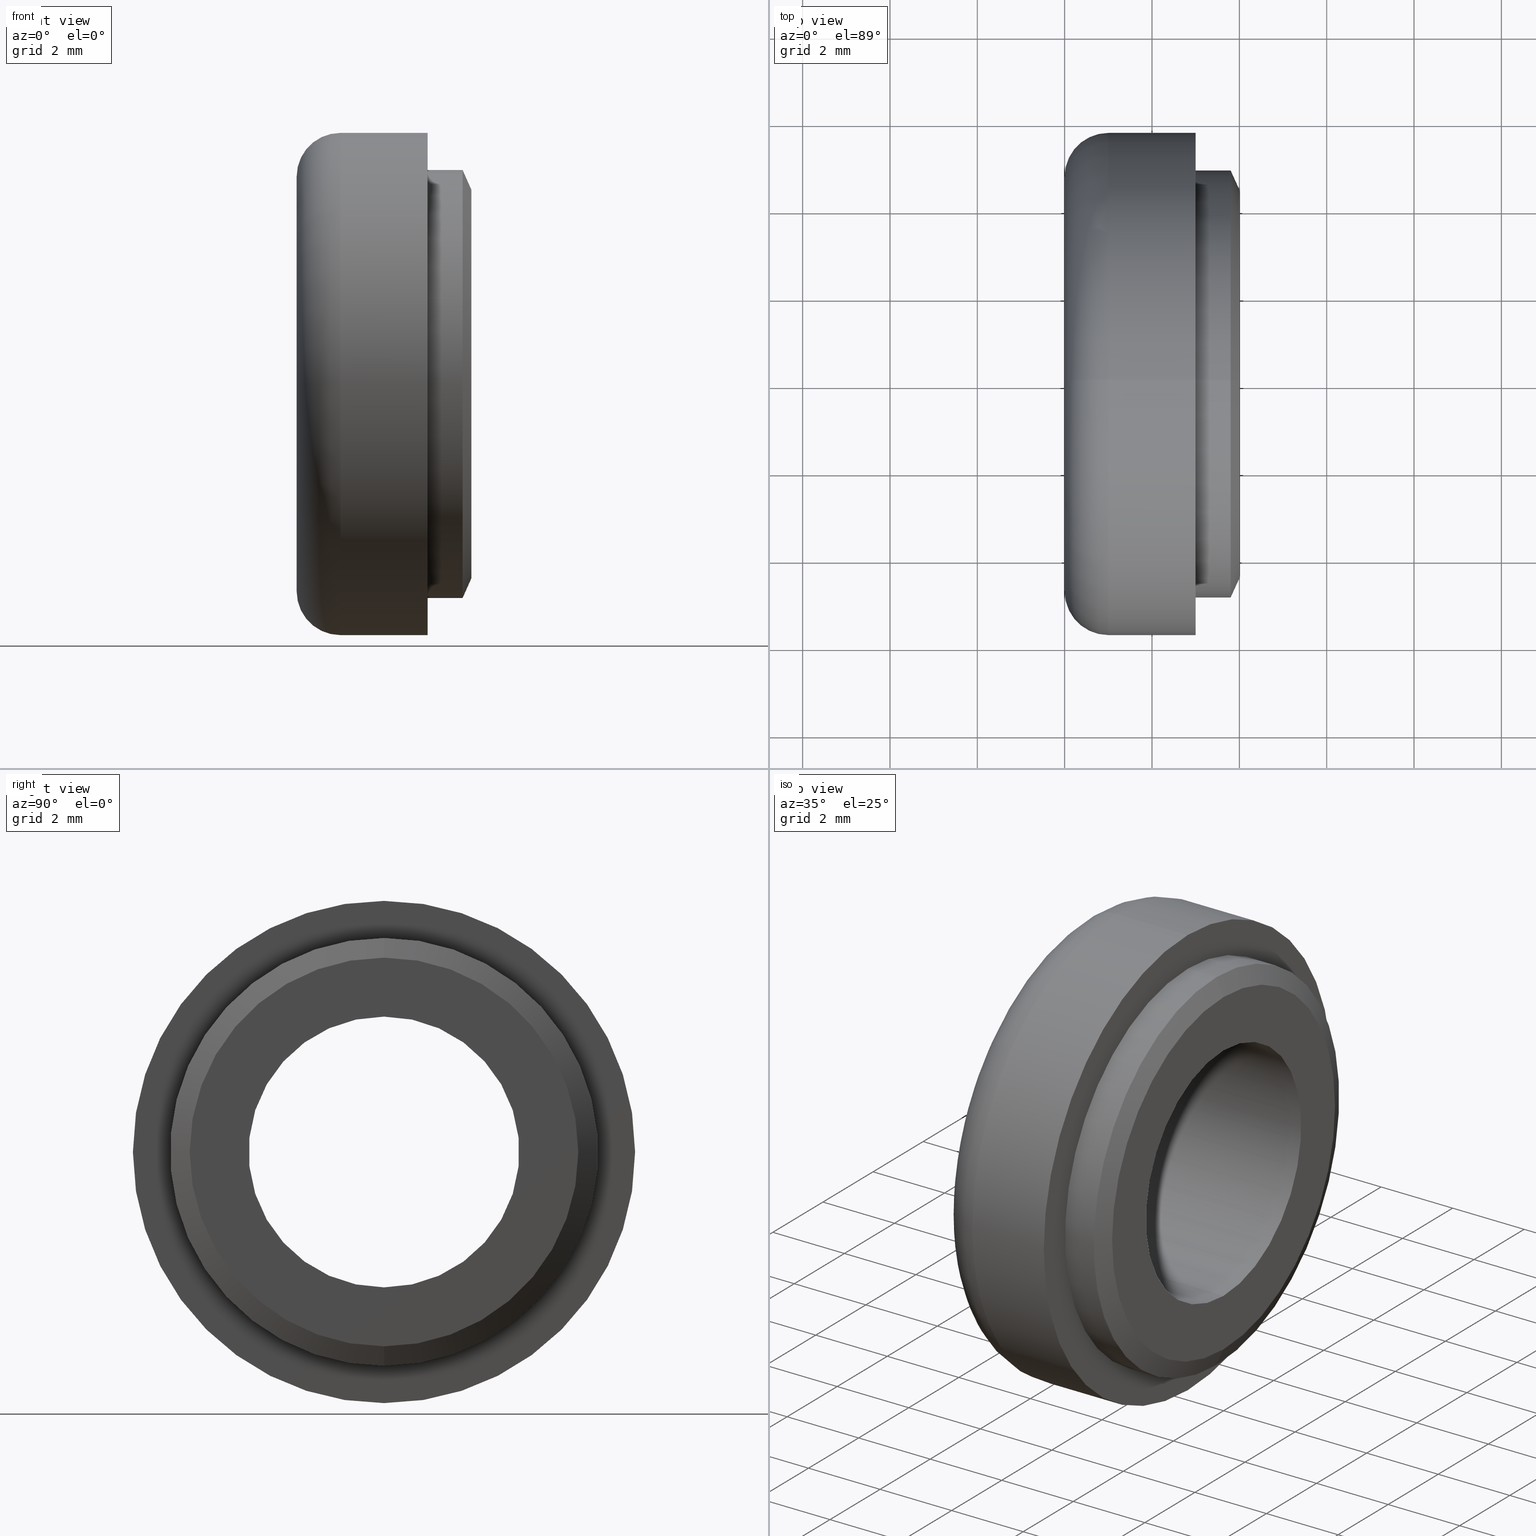
[diagram: canonical four-view strip — front | top / right | iso, engineering-drawing reading convention]
A machine part, canonical four-view strip (front | top / right | iso — engineering-drawing reading convention). The complete STEP part file that produces these views, byte-faithful:
ISO-10303-21;
HEADER;
FILE_DESCRIPTION (( 'STEP AP214' ),
    '1' );
FILE_NAME ('TL_421_M6.STEP',
    '2016-01-25T00:49:31',
    ( '' ),
    ( '' ),
    'SwSTEP 2.0',
    'SolidWorks 2015',
    '' );
FILE_SCHEMA (( 'AUTOMOTIVE_DESIGN' ));
ENDSEC;

DATA;
#1 = DIRECTION ( 'NONE',  ( 0.0000000000000000000, 0.0000000000000000000, -1.000000000000000000 ) ) ;
#2 = VERTEX_POINT ( 'NONE', #193 ) ;
#3 =( REPRESENTATION_RELATIONSHIP ('NONE','NONE', #61, #243 ) REPRESENTATION_RELATIONSHIP_WITH_TRANSFORMATION ( #430 )SHAPE_REPRESENTATION_RELATIONSHIP( ) );
#4 =( LENGTH_UNIT ( ) NAMED_UNIT ( * ) SI_UNIT ( .MILLI., .METRE. ) );
#5 = ORIENTED_EDGE ( 'NONE', *, *, #72, .F. ) ;
#6 = CIRCLE ( 'NONE', #586, 3.100000000000000100 ) ;
#7 =( LENGTH_UNIT ( ) NAMED_UNIT ( * ) SI_UNIT ( .MILLI., .METRE. ) );
#8 = UNCERTAINTY_MEASURE_WITH_UNIT (LENGTH_MEASURE( 1.000000000000000100E-005 ), #328, 'distance_accuracy_value', 'NONE');
#9 = DIRECTION ( 'NONE',  ( -1.000000000000000000, -0.0000000000000000000, -0.0000000000000000000 ) ) ;
#10 = PRODUCT_DEFINITION_SHAPE ( 'NONE', 'NONE',  #734 ) ;
#11 = DIRECTION ( 'NONE',  ( 1.000000000000000000, 0.0000000000000000000, 0.0000000000000000000 ) ) ;
#12 = CARTESIAN_POINT ( 'NONE',  ( 2.000000000000001800, 0.0000000000000000000, 4.749999999999999100 ) ) ;
#13 =( LENGTH_UNIT ( ) NAMED_UNIT ( * ) SI_UNIT ( .MILLI., .METRE. ) );
#14 = ADVANCED_FACE ( 'NONE', ( #259, #101 ), #74, .F. ) ;
#15 = DIRECTION ( 'NONE',  ( 0.0000000000000000000, 0.0000000000000000000, 1.000000000000000000 ) ) ;
#16 = CIRCLE ( 'NONE', #269, 5.749999999999999100 ) ;
#17 = ORIENTED_EDGE ( 'NONE', *, *, #722, .T. ) ;
#18 = CIRCLE ( 'NONE', #497, 3.100000000000000100 ) ;
#19 = VERTEX_POINT ( 'NONE', #694 ) ;
#20 = DIRECTION ( 'NONE',  ( 0.0000000000000000000, 0.0000000000000000000, -1.000000000000000000 ) ) ;
#21 = MECHANICAL_DESIGN_GEOMETRIC_PRESENTATION_REPRESENTATION (  '', ( #416 ), #45 ) ;
#22 = VERTEX_POINT ( 'NONE', #92 ) ;
#23 = CIRCLE ( 'NONE', #475, 4.750000000000000000 ) ;
#24 = DIRECTION ( 'NONE',  ( 0.0000000000000000000, 0.0000000000000000000, -1.000000000000000000 ) ) ;
#25 = PRODUCT_DEFINITION_FORMATION_WITH_SPECIFIED_SOURCE ( 'ANY', '', #69, .NOT_KNOWN. ) ;
#26 = DIRECTION ( 'NONE',  ( 0.0000000000000000000, 0.0000000000000000000, -1.000000000000000000 ) ) ;
#27 = SURFACE_STYLE_FILL_AREA ( #505 ) ;
#28 = EDGE_CURVE ( 'NONE', #144, #571, #688, .T. ) ;
#29 = SURFACE_STYLE_FILL_AREA ( #623 ) ;
#30 = DIRECTION ( 'NONE',  ( 0.0000000000000000000, 1.224646799147353500E-016, 1.000000000000000000 ) ) ;
#31 = AXIS2_PLACEMENT_3D ( 'NONE', #702, #365, #26 ) ;
#32 = EDGE_CURVE ( 'NONE', #85, #19, #387, .T. ) ;
#33 = AXIS2_PLACEMENT_3D ( 'NONE', #96, #610, #276 ) ;
#34 = CARTESIAN_POINT ( 'NONE',  ( 0.0000000000000000000, 0.0000000000000000000, 0.0000000000000000000 ) ) ;
#35 = CARTESIAN_POINT ( 'NONE',  ( 0.0000000000000000000, 0.0000000000000000000, 0.0000000000000000000 ) ) ;
#36 = EDGE_CURVE ( 'NONE', #612, #85, #540, .T. ) ;
#37 = ORIENTED_EDGE ( 'NONE', *, *, #189, .F. ) ;
#38 = PRODUCT_DEFINITION_CONTEXT ( 'detailed design', #568, 'design' ) ;
#39 = CARTESIAN_POINT ( 'NONE',  ( -88.98999999999999500, 0.0000000000000000000, 3.100000000000000500 ) ) ;
#40 = DIRECTION ( 'NONE',  ( -0.0000000000000000000, 0.0000000000000000000, 1.000000000000000000 ) ) ;
#41 = CIRCLE ( 'NONE', #42, 4.450000000000000200 ) ;
#42 = AXIS2_PLACEMENT_3D ( 'NONE', #439, #95, #495 ) ;
#43 = DIRECTION ( 'NONE',  ( 0.0000000000000000000, 0.0000000000000000000, 1.000000000000000000 ) ) ;
#44 =( NAMED_UNIT ( * ) PLANE_ANGLE_UNIT ( ) SI_UNIT ( $, .RADIAN. ) );
#45 =( GEOMETRIC_REPRESENTATION_CONTEXT ( 3 ) GLOBAL_UNCERTAINTY_ASSIGNED_CONTEXT ( ( #214 ) ) GLOBAL_UNIT_ASSIGNED_CONTEXT ( ( #4, #397, #50 ) ) REPRESENTATION_CONTEXT ( 'NONE', 'WORKASPACE' ) );
#46 = PRODUCT_CONTEXT ( 'NONE', #732, 'mechanical' ) ;
#47 =( LENGTH_UNIT ( ) NAMED_UNIT ( * ) SI_UNIT ( .MILLI., .METRE. ) );
#48 =( REPRESENTATION_RELATIONSHIP ('NONE','NONE', #61, #555 ) REPRESENTATION_RELATIONSHIP_WITH_TRANSFORMATION ( #567 )SHAPE_REPRESENTATION_RELATIONSHIP( ) );
#49 = ORIENTED_EDGE ( 'NONE', *, *, #223, .F. ) ;
#50 =( NAMED_UNIT ( * ) SI_UNIT ( $, .STERADIAN. ) SOLID_ANGLE_UNIT ( ) );
#51 = CARTESIAN_POINT ( 'NONE',  ( 3.000000000000002700, 5.449678256205721800E-016, -4.450000000000000200 ) ) ;
#52 =( NAMED_UNIT ( * ) SI_UNIT ( $, .STERADIAN. ) SOLID_ANGLE_UNIT ( ) );
#53 = DIRECTION ( 'NONE',  ( -1.000000000000000000, -0.0000000000000000000, -0.0000000000000000000 ) ) ;
#54 = CARTESIAN_POINT ( 'NONE',  ( -88.98999999999999500, 6.000769315822031700E-016, -4.900000000000000400 ) ) ;
#55 = CYLINDRICAL_SURFACE ( 'NONE', #522, 3.100000000000000100 ) ;
#56 = EDGE_LOOP ( 'NONE', ( #647, #478, #308, #517 ) ) ;
#57 = CARTESIAN_POINT ( 'NONE',  ( 0.0000000000000000000, 0.0000000000000000000, -4.749999999999999100 ) ) ;
#58 = ADVANCED_FACE ( 'NONE', ( #83 ), #587, .T. ) ;
#59 = PRODUCT_RELATED_PRODUCT_CATEGORY ( 'part', '', ( #69 ) ) ;
#60 = ORIENTED_EDGE ( 'NONE', *, *, #260, .T. ) ;
#61 = SHAPE_REPRESENTATION ( 'TL_421_M6', ( #509, #359, #395 ), #435 ) ;
#62 = EDGE_CURVE ( 'NONE', #144, #437, #367, .T. ) ;
#63 = SURFACE_STYLE_USAGE ( .BOTH. , #174 ) ;
#64 = EDGE_CURVE ( 'NONE', #178, #389, #290, .T. ) ;
#65 = CARTESIAN_POINT ( 'NONE',  ( 3.000000000000000000, 0.0000000000000000000, 0.0000000000000000000 ) ) ;
#66 = EDGE_LOOP ( 'NONE', ( #699, #556, #541, #580 ) ) ;
#67 = ORIENTED_EDGE ( 'NONE', *, *, #161, .T. ) ;
#68 = CARTESIAN_POINT ( 'NONE',  ( 0.0000000000000000000, 6.429395695523603200E-016, 4.749999999999999100 ) ) ;
#69 = PRODUCT ( 'TL_421_M6', 'TL_421_M6', '', ( #46 ) ) ;
#70 = ORIENTED_EDGE ( 'NONE', *, *, #270, .F. ) ;
#71 = AXIS2_PLACEMENT_3D ( 'NONE', #419, #79, #149 ) ;
#72 = EDGE_CURVE ( 'NONE', #437, #22, #565, .T. ) ;
#73 = AXIS2_PLACEMENT_3D ( 'NONE', #216, #615, #280 ) ;
#74 = PLANE ( 'NONE',  #370 ) ;
#75 = EDGE_CURVE ( 'NONE', #82, #178, #429, .T. ) ;
#76 = EDGE_LOOP ( 'NONE', ( #94, #67, #5, #70 ) ) ;
#77 = FACE_OUTER_BOUND ( 'NONE', #207, .T. ) ;
#78 = ORIENTED_EDGE ( 'NONE', *, *, #198, .T. ) ;
#79 = DIRECTION ( 'NONE',  ( -1.000000000000000000, -0.0000000000000000000, -0.0000000000000000000 ) ) ;
#80 = UNCERTAINTY_MEASURE_WITH_UNIT (LENGTH_MEASURE( 1.000000000000000100E-005 ), #510, 'distance_accuracy_value', 'NONE');
#81 = DIRECTION ( 'NONE',  ( 0.0000000000000000000, 0.0000000000000000000, 1.000000000000000000 ) ) ;
#82 = VERTEX_POINT ( 'NONE', #404 ) ;
#83 = FACE_OUTER_BOUND ( 'NONE', #103, .T. ) ;
#84 = AXIS2_PLACEMENT_3D ( 'NONE', #489, #209, #607 ) ;
#85 = VERTEX_POINT ( 'NONE', #12 ) ;
#86 = VERTEX_POINT ( 'NONE', #57 ) ;
#87 = DIRECTION ( 'NONE',  ( -1.000000000000000000, -0.0000000000000000000, -0.0000000000000000000 ) ) ;
#88 =( GEOMETRIC_REPRESENTATION_CONTEXT ( 3 ) GLOBAL_UNCERTAINTY_ASSIGNED_CONTEXT ( ( #80 ) ) GLOBAL_UNIT_ASSIGNED_CONTEXT ( ( #510, #180, #572 ) ) REPRESENTATION_CONTEXT ( 'NONE', 'WORKASPACE' ) );
#89 = DIRECTION ( 'NONE',  ( 0.0000000000000000000, 0.0000000000000000000, 1.000000000000000000 ) ) ;
#90 = CIRCLE ( 'NONE', #465, 4.900000000000000400 ) ;
#91 = DIRECTION ( 'NONE',  ( 0.0000000000000000000, 0.0000000000000000000, -1.000000000000000000 ) ) ;
#92 = CARTESIAN_POINT ( 'NONE',  ( 1.000000000000000000, 0.0000000000000000000, 5.749999999999999100 ) ) ;
#93 = CARTESIAN_POINT ( 'NONE',  ( 3.000000000000000000, 0.0000000000000000000, 5.749999999999999100 ) ) ;
#94 = ORIENTED_EDGE ( 'NONE', *, *, #468, .F. ) ;
#95 = DIRECTION ( 'NONE',  ( -1.000000000000000000, -0.0000000000000000000, -0.0000000000000000000 ) ) ;
#96 = CARTESIAN_POINT ( 'NONE',  ( 0.0000000000000000000, 0.0000000000000000000, 0.0000000000000000000 ) ) ;
#97 = CARTESIAN_POINT ( 'NONE',  ( 0.0000000000000000000, 0.0000000000000000000, 3.100000000000000100 ) ) ;
#98 = PRODUCT_DEFINITION_FORMATION_WITH_SPECIFIED_SOURCE ( 'ANY', '', #354, .NOT_KNOWN. ) ;
#99 = ORIENTED_EDGE ( 'NONE', *, *, #235, .F. ) ;
#100 = DIRECTION ( 'NONE',  ( -1.000000000000000000, -0.0000000000000000000, -0.0000000000000000000 ) ) ;
#101 = FACE_OUTER_BOUND ( 'NONE', #301, .T. ) ;
#102 = EDGE_CURVE ( 'NONE', #612, #293, #115, .T. ) ;
#103 = EDGE_LOOP ( 'NONE', ( #379, #525, #604, #698 ) ) ;
#104 = EDGE_CURVE ( 'NONE', #726, #197, #695, .T. ) ;
#105 =( NAMED_UNIT ( * ) SI_UNIT ( $, .STERADIAN. ) SOLID_ANGLE_UNIT ( ) );
#106 = ORIENTED_EDGE ( 'NONE', *, *, #313, .T. ) ;
#107 = CARTESIAN_POINT ( 'NONE',  ( 3.000000000000002700, 0.0000000000000000000, 0.0000000000000000000 ) ) ;
#108 = FILL_AREA_STYLE_COLOUR ( '', #319 ) ;
#109 = CIRCLE ( 'NONE', #195, 3.100000000000000100 ) ;
#110 = FILL_AREA_STYLE_COLOUR ( '', #665 ) ;
#111 = CIRCLE ( 'NONE', #391, 3.100000000000000100 ) ;
#112 = MECHANICAL_DESIGN_GEOMETRIC_PRESENTATION_REPRESENTATION (  '', ( #171 ), #625 ) ;
#113 = EDGE_CURVE ( 'NONE', #450, #320, #708, .T. ) ;
#114 = AXIS2_PLACEMENT_3D ( 'NONE', #657, #211, #40 ) ;
#115 = LINE ( 'NONE', #467, #412 ) ;
#116 = CONTEXT_DEPENDENT_SHAPE_REPRESENTATION ( #48, #10 ) ;
#117 = APPLICATION_PROTOCOL_DEFINITION ( 'draft international standard', 'automotive_design', 1998, #457 ) ;
#118 = EDGE_CURVE ( 'NONE', #592, #417, #394, .T. ) ;
#119 =( NAMED_UNIT ( * ) SI_UNIT ( $, .STERADIAN. ) SOLID_ANGLE_UNIT ( ) );
#120 = CARTESIAN_POINT ( 'NONE',  ( 0.0000000000000000000, 0.0000000000000000000, 0.0000000000000000000 ) ) ;
#121 = CARTESIAN_POINT ( 'NONE',  ( 0.0000000000000000000, 0.0000000000000000000, 0.0000000000000000000 ) ) ;
#122 = CARTESIAN_POINT ( 'NONE',  ( 0.0000000000000000000, 5.817072295949927400E-016, -4.750000000000000000 ) ) ;
#123 = EDGE_LOOP ( 'NONE', ( #316, #590 ) ) ;
#124 = ORIENTED_EDGE ( 'NONE', *, *, #32, .T. ) ;
#125 = ADVANCED_FACE ( 'NONE', ( #254 ), #377, .T. ) ;
#126 = ORIENTED_EDGE ( 'NONE', *, *, #646, .F. ) ;
#127 = ADVANCED_FACE ( 'NONE', ( #546 ), #524, .T. ) ;
#128 = EDGE_LOOP ( 'NONE', ( #60, #677 ) ) ;
#129 = DIRECTION ( 'NONE',  ( 1.000000000000000000, 0.0000000000000000000, 0.0000000000000000000 ) ) ;
#130 = DIRECTION ( 'NONE',  ( -1.000000000000000000, -0.0000000000000000000, -0.0000000000000000000 ) ) ;
#131 = AXIS2_PLACEMENT_3D ( 'NONE', #603, #550, #43 ) ;
#132 = LINE ( 'NONE', #39, #188 ) ;
#133 = CARTESIAN_POINT ( 'NONE',  ( 3.000000000000000000, 0.0000000000000000000, 0.0000000000000000000 ) ) ;
#134 = DIRECTION ( 'NONE',  ( 0.0000000000000000000, 0.0000000000000000000, -1.000000000000000000 ) ) ;
#135 = FACE_OUTER_BOUND ( 'NONE', #372, .T. ) ;
#136 = CONICAL_SURFACE ( 'NONE', #579, 4.450000000000000200, 1.152571997215657400 ) ;
#137 = VECTOR ( 'NONE', #141, 1000.000000000000000 ) ;
#138 = PRODUCT ( 'washer', 'washer', '', ( #294 ) ) ;
#139 = AXIS2_PLACEMENT_3D ( 'NONE', #566, #608, #441 ) ;
#140 = STYLED_ITEM ( 'NONE', ( #233 ), #684 ) ;
#141 = DIRECTION ( 'NONE',  ( -1.000000000000000000, -0.0000000000000000000, -0.0000000000000000000 ) ) ;
#142 = ADVANCED_FACE ( 'NONE', ( #531 ), #187, .F. ) ;
#143 = ORIENTED_EDGE ( 'NONE', *, *, #532, .F. ) ;
#144 = VERTEX_POINT ( 'NONE', #454 ) ;
#145 = PRODUCT_DEFINITION_SHAPE ( 'NONE', 'NONE',  #733 ) ;
#146 = FACE_OUTER_BOUND ( 'NONE', #304, .T. ) ;
#147 = MANIFOLD_SOLID_BREP ( '��]1', #661 ) ;
#148 = ORIENTED_EDGE ( 'NONE', *, *, #223, .T. ) ;
#149 = DIRECTION ( 'NONE',  ( 0.0000000000000000000, 0.0000000000000000000, 1.000000000000000000 ) ) ;
#150 = PRODUCT_RELATED_PRODUCT_CATEGORY ( 'part', '', ( #354 ) ) ;
#151 = EDGE_CURVE ( 'NONE', #571, #22, #333, .T. ) ;
#152 = EDGE_LOOP ( 'NONE', ( #716, #143 ) ) ;
#153 = EDGE_CURVE ( 'NONE', #552, #178, #90, .T. ) ;
#154 = VECTOR ( 'NONE', #230, 1000.000000000000000 ) ;
#155 = CIRCLE ( 'NONE', #645, 4.450000000000000200 ) ;
#156 = ORIENTED_EDGE ( 'NONE', *, *, #28, .T. ) ;
#157 = SHAPE_DEFINITION_REPRESENTATION ( #239, #61 ) ;
#158 = CARTESIAN_POINT ( 'NONE',  ( -88.98999999999999500, 3.796405077356795400E-016, -3.100000000000000500 ) ) ;
#159 = DIRECTION ( 'NONE',  ( 0.0000000000000000000, 0.0000000000000000000, 1.000000000000000000 ) ) ;
#160 = EDGE_CURVE ( 'NONE', #281, #559, #18, .T. ) ;
#161 = EDGE_CURVE ( 'NONE', #271, #22, #449, .T. ) ;
#162 = DIRECTION ( 'NONE',  ( 1.000000000000000000, 0.0000000000000000000, 0.0000000000000000000 ) ) ;
#163 = DIRECTION ( 'NONE',  ( 1.000000000000000000, 0.0000000000000000000, 0.0000000000000000000 ) ) ;
#164 = LINE ( 'NONE', #54, #606 ) ;
#165 = ORIENTED_EDGE ( 'NONE', *, *, #161, .F. ) ;
#166 = DIRECTION ( 'NONE',  ( -1.000000000000000000, -0.0000000000000000000, -0.0000000000000000000 ) ) ;
#167 = CARTESIAN_POINT ( 'NONE',  ( 1.000000000000000000, 0.0000000000000000000, 0.0000000000000000000 ) ) ;
#168 = ORIENTED_EDGE ( 'NONE', *, *, #490, .F. ) ;
#169 = VECTOR ( 'NONE', #227, 1000.000000000000000 ) ;
#170 = ORIENTED_EDGE ( 'NONE', *, *, #160, .F. ) ;
#171 = STYLED_ITEM ( 'NONE', ( #619 ), #601 ) ;
#172 = ORIENTED_EDGE ( 'NONE', *, *, #36, .F. ) ;
#173 = DIRECTION ( 'NONE',  ( 0.0000000000000000000, 0.0000000000000000000, 1.000000000000000000 ) ) ;
#174 = SURFACE_SIDE_STYLE ('',( #27 ) ) ;
#175 = PRESENTATION_LAYER_ASSIGNMENT (  '', '', ( #140 ) ) ;
#176 = PRODUCT_CONTEXT ( 'NONE', #291, 'mechanical' ) ;
#177 = CARTESIAN_POINT ( 'NONE',  ( 0.0000000000000000000, 0.0000000000000000000, 0.0000000000000000000 ) ) ;
#178 = VERTEX_POINT ( 'NONE', #488 ) ;
#179 = CIRCLE ( 'NONE', #503, 1.000000000000000000 ) ;
#180 =( NAMED_UNIT ( * ) PLANE_ANGLE_UNIT ( ) SI_UNIT ( $, .RADIAN. ) );
#181 = DIRECTION ( 'NONE',  ( 0.0000000000000000000, 0.0000000000000000000, 1.000000000000000000 ) ) ;
#182 = DIRECTION ( 'NONE',  ( 1.000000000000000000, 0.0000000000000000000, 0.0000000000000000000 ) ) ;
#183 = ADVANCED_FACE ( 'NONE', ( #599 ), #136, .T. ) ;
#184 = DIRECTION ( 'NONE',  ( 0.0000000000000000000, -1.000000000000000000, 0.0000000000000000000 ) ) ;
#185 = DIRECTION ( 'NONE',  ( -1.000000000000000000, -0.0000000000000000000, -0.0000000000000000000 ) ) ;
#186 = PRODUCT_DEFINITION_FORMATION_WITH_SPECIFIED_SOURCE ( 'ANY', '', #138, .NOT_KNOWN. ) ;
#187 = CYLINDRICAL_SURFACE ( 'NONE', #347, 3.100000000000000100 ) ;
#188 = VECTOR ( 'NONE', #273, 1000.000000000000000 ) ;
#189 = EDGE_CURVE ( 'NONE', #85, #612, #287, .T. ) ;
#190 = EDGE_CURVE ( 'NONE', #82, #2, #155, .T. ) ;
#191 = DIRECTION ( 'NONE',  ( -1.000000000000000000, -0.0000000000000000000, -0.0000000000000000000 ) ) ;
#192 = CARTESIAN_POINT ( 'NONE',  ( 2.000000000000001800, 0.0000000000000000000, 0.0000000000000000000 ) ) ;
#193 = CARTESIAN_POINT ( 'NONE',  ( 3.000000000000002700, 5.725223786013876300E-016, -4.450000000000000200 ) ) ;
#194 = EDGE_CURVE ( 'NONE', #178, #552, #725, .T. ) ;
#195 = AXIS2_PLACEMENT_3D ( 'NONE', #167, #558, #220 ) ;
#196 = ADVANCED_FACE ( 'NONE', ( #427 ), #307, .T. ) ;
#197 = VERTEX_POINT ( 'NONE', #544 ) ;
#198 = EDGE_CURVE ( 'NONE', #592, #559, #706, .T. ) ;
#199 = SHAPE_REPRESENTATION_RELATIONSHIP ( 'NONE' , 'NONE' ,  #555, #684 ) ;
#200 = PRESENTATION_LAYER_ASSIGNMENT (  '', '', ( #242 ) ) ;
#201 = CIRCLE ( 'NONE', #662, 4.749999999999999100 ) ;
#202 = CARTESIAN_POINT ( 'NONE',  ( 2.000000000000001800, 0.0000000000000000000, 0.0000000000000000000 ) ) ;
#203 = PRESENTATION_LAYER_ASSIGNMENT (  '', '', ( #171 ) ) ;
#204 = CARTESIAN_POINT ( 'NONE',  ( 0.0000000000000000000, 3.796405077356794900E-016, -3.100000000000000100 ) ) ;
#205 = MECHANICAL_DESIGN_GEOMETRIC_PRESENTATION_REPRESENTATION (  '', ( #140 ), #255 ) ;
#206 = PLANE ( 'NONE',  #84 ) ;
#207 = EDGE_LOOP ( 'NONE', ( #667, #538, #618, #366 ) ) ;
#208 = CARTESIAN_POINT ( 'NONE',  ( -88.98999999999999500, 0.0000000000000000000, 4.749999999999999100 ) ) ;
#209 = DIRECTION ( 'NONE',  ( 1.000000000000000000, 0.0000000000000000000, 0.0000000000000000000 ) ) ;
#210 = CARTESIAN_POINT ( 'NONE',  ( 2.799999999999997200, 6.000769315822031700E-016, -4.900000000000000400 ) ) ;
#211 = DIRECTION ( 'NONE',  ( -1.000000000000000000, 0.0000000000000000000, -0.0000000000000000000 ) ) ;
#212 = FACE_OUTER_BOUND ( 'NONE', #689, .T. ) ;
#213 = EDGE_LOOP ( 'NONE', ( #600, #418 ) ) ;
#214 = UNCERTAINTY_MEASURE_WITH_UNIT (LENGTH_MEASURE( 1.000000000000000100E-005 ), #4, 'distance_accuracy_value', 'NONE');
#215 = CARTESIAN_POINT ( 'NONE',  ( 1.000000000000000000, 0.0000000000000000000, 0.0000000000000000000 ) ) ;
#216 = CARTESIAN_POINT ( 'NONE',  ( 1.000000000000000000, 0.0000000000000000000, 0.0000000000000000000 ) ) ;
#217 = ORIENTED_EDGE ( 'NONE', *, *, #194, .T. ) ;
#218 = ORIENTED_EDGE ( 'NONE', *, *, #231, .F. ) ;
#219 = PRODUCT_RELATED_PRODUCT_CATEGORY ( 'part', '', ( #138 ) ) ;
#220 = DIRECTION ( 'NONE',  ( 0.0000000000000000000, 0.0000000000000000000, -1.000000000000000000 ) ) ;
#221 = EDGE_CURVE ( 'NONE', #571, #144, #583, .T. ) ;
#222 = EDGE_LOOP ( 'NONE', ( #296, #520, #257, #49 ) ) ;
#223 = EDGE_CURVE ( 'NONE', #666, #389, #562, .T. ) ;
#224 = ORIENTED_EDGE ( 'NONE', *, *, #72, .T. ) ;
#225 = ORIENTED_EDGE ( 'NONE', *, *, #104, .T. ) ;
#226 = DIRECTION ( 'NONE',  ( 0.0000000000000000000, 0.0000000000000000000, -1.000000000000000000 ) ) ;
#227 = DIRECTION ( 'NONE',  ( -1.000000000000000000, -0.0000000000000000000, -0.0000000000000000000 ) ) ;
#228 = EDGE_LOOP ( 'NONE', ( #217, #422, #570, #363 ) ) ;
#229 = DIRECTION ( 'NONE',  ( 0.0000000000000000000, 0.0000000000000000000, 1.000000000000000000 ) ) ;
#230 = DIRECTION ( 'NONE',  ( -1.000000000000000000, 0.0000000000000000000, 0.0000000000000000000 ) ) ;
#231 = EDGE_CURVE ( 'NONE', #466, #658, #111, .T. ) ;
#232 = AXIS2_PLACEMENT_3D ( 'NONE', #498, #442, #660 ) ;
#233 = PRESENTATION_STYLE_ASSIGNMENT (( #344 ) ) ;
#234 = APPLICATION_PROTOCOL_DEFINITION ( 'draft international standard', 'automotive_design', 1998, #568 ) ;
#235 = EDGE_CURVE ( 'NONE', #197, #466, #692, .T. ) ;
#236 = DIRECTION ( 'NONE',  ( 1.000000000000000000, 0.0000000000000000000, 0.0000000000000000000 ) ) ;
#237 = CARTESIAN_POINT ( 'NONE',  ( 2.000000000000001800, 0.0000000000000000000, 0.0000000000000000000 ) ) ;
#238 = EDGE_LOOP ( 'NONE', ( #381, #528, #597, #277 ) ) ;
#239 = PRODUCT_DEFINITION_SHAPE ( 'NONE', 'NONE',  #718 ) ;
#240 = CIRCLE ( 'NONE', #693, 3.100000000000000500 ) ;
#241 = ORIENTED_EDGE ( 'NONE', *, *, #270, .T. ) ;
#242 = STYLED_ITEM ( 'NONE', ( #617 ), #147 ) ;
#243 = SHAPE_REPRESENTATION ( 'washer', ( #376 ), #340 ) ;
#244 = DIRECTION ( 'NONE',  ( 0.0000000000000000000, 0.0000000000000000000, 1.000000000000000000 ) ) ;
#245 = PLANE ( 'NONE',  #624 ) ;
#246 = ORIENTED_EDGE ( 'NONE', *, *, #75, .T. ) ;
#247 = VECTOR ( 'NONE', #492, 1000.000000000000000 ) ;
#248 = CARTESIAN_POINT ( 'NONE',  ( 3.000000000000000000, 0.0000000000000000000, 0.0000000000000000000 ) ) ;
#249 = ORIENTED_EDGE ( 'NONE', *, *, #153, .F. ) ;
#250 = ORIENTED_EDGE ( 'NONE', *, *, #113, .T. ) ;
#251 = DIRECTION ( 'NONE',  ( 0.0000000000000000000, 0.0000000000000000000, 1.000000000000000000 ) ) ;
#252 = DIRECTION ( 'NONE',  ( 0.0000000000000000000, 0.0000000000000000000, 1.000000000000000000 ) ) ;
#253 = CARTESIAN_POINT ( 'NONE',  ( 2.000000000000000000, 4.900000000000000400, 0.0000000000000000000 ) ) ;
#254 = FACE_OUTER_BOUND ( 'NONE', #669, .T. ) ;
#255 =( GEOMETRIC_REPRESENTATION_CONTEXT ( 3 ) GLOBAL_UNCERTAINTY_ASSIGNED_CONTEXT ( ( #553 ) ) GLOBAL_UNIT_ASSIGNED_CONTEXT ( ( #7, #398, #52 ) ) REPRESENTATION_CONTEXT ( 'NONE', 'WORKASPACE' ) );
#256 = DIRECTION ( 'NONE',  ( -0.4061384660534569400, 0.0000000000000000000, 0.9138115486202530400 ) ) ;
#257 = ORIENTED_EDGE ( 'NONE', *, *, #64, .T. ) ;
#258 = CLOSED_SHELL ( 'NONE', ( #415, #196, #463, #400, #360, #303, #635, #402, #696, #349, #142 ) ) ;
#259 = FACE_BOUND ( 'NONE', #278, .T. ) ;
#260 = EDGE_CURVE ( 'NONE', #19, #293, #411, .T. ) ;
#261 = ORIENTED_EDGE ( 'NONE', *, *, #267, .F. ) ;
#262 = EDGE_CURVE ( 'NONE', #2, #552, #479, .T. ) ;
#263 = LINE ( 'NONE', #664, #491 ) ;
#264 = VECTOR ( 'NONE', #166, 1000.000000000000000 ) ;
#265 = CARTESIAN_POINT ( 'NONE',  ( 2.799999999999997200, 0.0000000000000000000, 0.0000000000000000000 ) ) ;
#266 = VECTOR ( 'NONE', #256, 1000.000000000000000 ) ;
#267 = EDGE_CURVE ( 'NONE', #22, #437, #16, .T. ) ;
#268 = EDGE_CURVE ( 'NONE', #293, #19, #23, .T. ) ;
#269 = AXIS2_PLACEMENT_3D ( 'NONE', #673, #339, #1 ) ;
#270 = EDGE_CURVE ( 'NONE', #86, #437, #179, .T. ) ;
#271 = VERTEX_POINT ( 'NONE', #68 ) ;
#272 = DIRECTION ( 'NONE',  ( 1.000000000000000000, 0.0000000000000000000, 0.0000000000000000000 ) ) ;
#273 = DIRECTION ( 'NONE',  ( -1.000000000000000000, -0.0000000000000000000, -0.0000000000000000000 ) ) ;
#274 = CYLINDRICAL_SURFACE ( 'NONE', #71, 5.749999999999999100 ) ;
#275 = AXIS2_PLACEMENT_3D ( 'NONE', #640, #473, #251 ) ;
#276 = DIRECTION ( 'NONE',  ( 0.0000000000000000000, 0.0000000000000000000, -1.000000000000000000 ) ) ;
#277 = ORIENTED_EDGE ( 'NONE', *, *, #75, .F. ) ;
#278 = EDGE_LOOP ( 'NONE', ( #37, #172 ) ) ;
#279 = DIRECTION ( 'NONE',  ( -1.000000000000000000, -0.0000000000000000000, -0.0000000000000000000 ) ) ;
#280 = DIRECTION ( 'NONE',  ( 0.0000000000000000000, 0.0000000000000000000, -1.000000000000000000 ) ) ;
#281 = VERTEX_POINT ( 'NONE', #632 ) ;
#282 = DIRECTION ( 'NONE',  ( -1.000000000000000000, -0.0000000000000000000, -0.0000000000000000000 ) ) ;
#283 = DIRECTION ( 'NONE',  ( 0.0000000000000000000, 0.0000000000000000000, -1.000000000000000000 ) ) ;
#284 = VECTOR ( 'NONE', #494, 1000.000000000000000 ) ;
#285 = CARTESIAN_POINT ( 'NONE',  ( 1.000000000000000000, 0.0000000000000000000, 4.749999999999999100 ) ) ;
#286 = CYLINDRICAL_SURFACE ( 'NONE', #139, 3.100000000000000500 ) ;
#287 = CIRCLE ( 'NONE', #614, 4.749999999999999100 ) ;
#288 = CARTESIAN_POINT ( 'NONE',  ( 1.000000000000000000, 7.041719095097279900E-016, -5.749999999999999100 ) ) ;
#289 = CARTESIAN_POINT ( 'NONE',  ( 2.000000000000001800, 5.817072295949926400E-016, -4.749999999999999100 ) ) ;
#290 = LINE ( 'NONE', #679, #137 ) ;
#291 = APPLICATION_CONTEXT ( 'automotive_design' ) ;
#292 = ORIENTED_EDGE ( 'NONE', *, *, #102, .F. ) ;
#293 = VERTEX_POINT ( 'NONE', #122 ) ;
#294 = PRODUCT_CONTEXT ( 'NONE', #672, 'mechanical' ) ;
#295 = FILL_AREA_STYLE ('',( #629 ) ) ;
#296 = ORIENTED_EDGE ( 'NONE', *, *, #311, .F. ) ;
#297 = FILL_AREA_STYLE ('',( #630 ) ) ;
#298 = TOROIDAL_SURFACE ( 'NONE', #730, 4.749999999999999100, 1.000000000000000000 ) ;
#299 = DIRECTION ( 'NONE',  ( 0.0000000000000000000, 0.0000000000000000000, 1.000000000000000000 ) ) ;
#300 = SURFACE_STYLE_FILL_AREA ( #295 ) ;
#301 = EDGE_LOOP ( 'NONE', ( #712, #148 ) ) ;
#302 = CARTESIAN_POINT ( 'NONE',  ( 1.000000000000000000, 0.0000000000000000000, 0.0000000000000000000 ) ) ;
#303 = ADVANCED_FACE ( 'NONE', ( #314, #543 ), #245, .T. ) ;
#304 = EDGE_LOOP ( 'NONE', ( #700, #250, #17, #168 ) ) ;
#305 = DIRECTION ( 'NONE',  ( 0.0000000000000000000, 0.0000000000000000000, -1.000000000000000000 ) ) ;
#306 = LINE ( 'NONE', #506, #154 ) ;
#307 = TOROIDAL_SURFACE ( 'NONE', #322, 4.749999999999999100, 1.000000000000000000 ) ;
#308 = ORIENTED_EDGE ( 'NONE', *, *, #537, .T. ) ;
#309 = CARTESIAN_POINT ( 'NONE',  ( -88.98999999999999500, 0.0000000000000000000, 0.0000000000000000000 ) ) ;
#310 = CARTESIAN_POINT ( 'NONE',  ( 3.000000000000000000, 3.796405077356794900E-016, -3.100000000000000100 ) ) ;
#311 = EDGE_CURVE ( 'NONE', #552, #666, #164, .T. ) ;
#312 = AXIS2_PLACEMENT_3D ( 'NONE', #501, #621, #283 ) ;
#313 = EDGE_CURVE ( 'NONE', #559, #281, #6, .T. ) ;
#314 = FACE_BOUND ( 'NONE', #420, .T. ) ;
#315 = AXIS2_PLACEMENT_3D ( 'NONE', #309, #356, #639 ) ;
#316 = ORIENTED_EDGE ( 'NONE', *, *, #414, .T. ) ;
#317 = CARTESIAN_POINT ( 'NONE',  ( 1.000000000000000000, 5.817072295949926400E-016, -4.749999999999999100 ) ) ;
#318 = ORIENTED_EDGE ( 'NONE', *, *, #313, .F. ) ;
#319 = COLOUR_RGB ( '',0.7921568627450980000, 0.8196078431372548800, 0.9333333333333333500 ) ;
#320 = VERTEX_POINT ( 'NONE', #464 ) ;
#321 = ORIENTED_EDGE ( 'NONE', *, *, #722, .F. ) ;
#322 = AXIS2_PLACEMENT_3D ( 'NONE', #215, #332, #719 ) ;
#323 = CARTESIAN_POINT ( 'NONE',  ( 3.000000000000002700, 0.0000000000000000000, 0.0000000000000000000 ) ) ;
#324 = DIRECTION ( 'NONE',  ( 0.0000000000000000000, 0.0000000000000000000, 1.000000000000000000 ) ) ;
#325 = AXIS2_PLACEMENT_3D ( 'NONE', #121, #513, #182 ) ;
#326 = ORIENTED_EDGE ( 'NONE', *, *, #221, .T. ) ;
#327 = DIRECTION ( 'NONE',  ( 1.000000000000000000, 0.0000000000000000000, 0.0000000000000000000 ) ) ;
#328 =( LENGTH_UNIT ( ) NAMED_UNIT ( * ) SI_UNIT ( .MILLI., .METRE. ) );
#329 = VECTOR ( 'NONE', #461, 1000.000000000000000 ) ;
#330 = DIRECTION ( 'NONE',  ( -1.000000000000000000, -0.0000000000000000000, -0.0000000000000000000 ) ) ;
#331 = PRODUCT_DEFINITION_SHAPE ( 'NONE', 'NONE',  #644 ) ;
#332 = DIRECTION ( 'NONE',  ( 1.000000000000000000, 0.0000000000000000000, 0.0000000000000000000 ) ) ;
#333 = LINE ( 'NONE', #436, #284 ) ;
#334 =( NAMED_UNIT ( * ) PLANE_ANGLE_UNIT ( ) SI_UNIT ( $, .RADIAN. ) );
#335 = DIRECTION ( 'NONE',  ( -1.000000000000000000, 0.0000000000000000000, 0.0000000000000000000 ) ) ;
#336 = AXIS2_PLACEMENT_3D ( 'NONE', #605, #272, #653 ) ;
#337 = SURFACE_SIDE_STYLE ('',( #29 ) ) ;
#338 = EDGE_CURVE ( 'NONE', #658, #466, #460, .T. ) ;
#339 = DIRECTION ( 'NONE',  ( 1.000000000000000000, 0.0000000000000000000, 0.0000000000000000000 ) ) ;
#340 =( GEOMETRIC_REPRESENTATION_CONTEXT ( 3 ) GLOBAL_UNCERTAINTY_ASSIGNED_CONTEXT ( ( #480 ) ) GLOBAL_UNIT_ASSIGNED_CONTEXT ( ( #47, #459, #119 ) ) REPRESENTATION_CONTEXT ( 'NONE', 'WORKASPACE' ) );
#341 = APPLICATION_PROTOCOL_DEFINITION ( 'draft international standard', 'automotive_design', 1998, #675 ) ;
#342 = SHAPE_REPRESENTATION_RELATIONSHIP ( 'NONE' , 'NONE' ,  #243, #348 ) ;
#343 = SURFACE_STYLE_USAGE ( .BOTH. , #676 ) ;
#344 = SURFACE_STYLE_USAGE ( .BOTH. , #678 ) ;
#345 = CARTESIAN_POINT ( 'NONE',  ( 0.0000000000000000000, 0.0000000000000000000, 0.0000000000000000000 ) ) ;
#346 = CARTESIAN_POINT ( 'NONE',  ( 3.000000000000000000, 0.0000000000000000000, 0.0000000000000000000 ) ) ;
#347 = AXIS2_PLACEMENT_3D ( 'NONE', #133, #670, #727 ) ;
#348 = ADVANCED_BREP_SHAPE_REPRESENTATION ( '', ( #601, #376 ), #340 ) ;
#349 = ADVANCED_FACE ( 'NONE', ( #438 ), #298, .T. ) ;
#350 = DIRECTION ( 'NONE',  ( 1.000000000000000000, 0.0000000000000000000, 0.0000000000000000000 ) ) ;
#351 = CYLINDRICAL_SURFACE ( 'NONE', #637, 4.749999999999999100 ) ;
#352 = DIRECTION ( 'NONE',  ( -1.000000000000000000, -0.0000000000000000000, -0.0000000000000000000 ) ) ;
#353 = DIRECTION ( 'NONE',  ( -1.000000000000000000, 0.0000000000000000000, 0.0000000000000000000 ) ) ;
#354 = PRODUCT ( 'packing', 'packing', '', ( #176 ) ) ;
#355 = AXIS2_PLACEMENT_3D ( 'NONE', #192, #585, #252 ) ;
#356 = DIRECTION ( 'NONE',  ( -1.000000000000000000, -0.0000000000000000000, -0.0000000000000000000 ) ) ;
#357 = DIRECTION ( 'NONE',  ( 1.000000000000000000, 0.0000000000000000000, 0.0000000000000000000 ) ) ;
#358 = DIRECTION ( 'NONE',  ( 0.0000000000000000000, 0.0000000000000000000, -1.000000000000000000 ) ) ;
#359 = AXIS2_PLACEMENT_3D ( 'NONE', #575, #244, #634 ) ;
#360 = ADVANCED_FACE ( 'NONE', ( #574 ), #274, .T. ) ;
#361 = ORIENTED_EDGE ( 'NONE', *, *, #581, .T. ) ;
#362 = CIRCLE ( 'NONE', #595, 4.749999999999999100 ) ;
#363 = ORIENTED_EDGE ( 'NONE', *, *, #64, .F. ) ;
#364 = ORIENTED_EDGE ( 'NONE', *, *, #338, .T. ) ;
#365 = DIRECTION ( 'NONE',  ( -1.000000000000000000, -0.0000000000000000000, -0.0000000000000000000 ) ) ;
#366 = ORIENTED_EDGE ( 'NONE', *, *, #616, .F. ) ;
#367 = LINE ( 'NONE', #573, #407 ) ;
#368 = EDGE_LOOP ( 'NONE', ( #364, #576 ) ) ;
#369 = EDGE_LOOP ( 'NONE', ( #170, #318 ) ) ;
#370 = AXIS2_PLACEMENT_3D ( 'NONE', #253, #413, #358 ) ;
#371 = DIRECTION ( 'NONE',  ( 0.0000000000000000000, 1.000000000000000000, -1.224646799147353200E-016 ) ) ;
#372 = EDGE_LOOP ( 'NONE', ( #711, #515 ) ) ;
#373 = DIRECTION ( 'NONE',  ( 0.0000000000000000000, 0.0000000000000000000, 1.000000000000000000 ) ) ;
#374 = SURFACE_STYLE_FILL_AREA ( #297 ) ;
#375 = EDGE_CURVE ( 'NONE', #86, #271, #593, .T. ) ;
#376 = AXIS2_PLACEMENT_3D ( 'NONE', #177, #569, #236 ) ;
#377 = CYLINDRICAL_SURFACE ( 'NONE', #275, 4.749999999999999100 ) ;
#378 =( NAMED_UNIT ( * ) SI_UNIT ( $, .STERADIAN. ) SOLID_ANGLE_UNIT ( ) );
#379 = ORIENTED_EDGE ( 'NONE', *, *, #189, .T. ) ;
#380 = CARTESIAN_POINT ( 'NONE',  ( 0.0000000000000000000, 3.796405077356794900E-016, -3.100000000000000100 ) ) ;
#381 = ORIENTED_EDGE ( 'NONE', *, *, #190, .T. ) ;
#382 = CYLINDRICAL_SURFACE ( 'NONE', #406, 5.749999999999999100 ) ;
#383 = ORIENTED_EDGE ( 'NONE', *, *, #262, .F. ) ;
#384 = MECHANICAL_DESIGN_GEOMETRIC_PRESENTATION_REPRESENTATION (  '', ( #242 ), #421 ) ;
#385 = VERTEX_POINT ( 'NONE', #317 ) ;
#386 = CARTESIAN_POINT ( 'NONE',  ( 1.000000000000000000, 0.0000000000000000000, 3.100000000000000100 ) ) ;
#387 = LINE ( 'NONE', #208, #247 ) ;
#388 = DIRECTION ( 'NONE',  ( -1.000000000000000000, -0.0000000000000000000, -0.0000000000000000000 ) ) ;
#389 = VERTEX_POINT ( 'NONE', #481 ) ;
#390 = ORIENTED_EDGE ( 'NONE', *, *, #268, .F. ) ;
#391 = AXIS2_PLACEMENT_3D ( 'NONE', #690, #357, #20 ) ;
#392 =( LENGTH_UNIT ( ) NAMED_UNIT ( * ) SI_UNIT ( .MILLI., .METRE. ) );
#393 = APPLICATION_PROTOCOL_DEFINITION ( 'draft international standard', 'automotive_design', 1998, #732 ) ;
#394 = CIRCLE ( 'NONE', #602, 3.100000000000000500 ) ;
#395 = AXIS2_PLACEMENT_3D ( 'NONE', #302, #683, #350 ) ;
#396 = ORIENTED_EDGE ( 'NONE', *, *, #499, .T. ) ;
#397 =( NAMED_UNIT ( * ) PLANE_ANGLE_UNIT ( ) SI_UNIT ( $, .RADIAN. ) );
#398 =( NAMED_UNIT ( * ) PLANE_ANGLE_UNIT ( ) SI_UNIT ( $, .RADIAN. ) );
#399 = DIRECTION ( 'NONE',  ( 0.0000000000000000000, 0.0000000000000000000, 1.000000000000000000 ) ) ;
#400 = ADVANCED_FACE ( 'NONE', ( #715 ), #382, .T. ) ;
#401 = DIRECTION ( 'NONE',  ( 0.0000000000000000000, 0.0000000000000000000, -1.000000000000000000 ) ) ;
#402 = ADVANCED_FACE ( 'NONE', ( #146 ), #655, .F. ) ;
#403 = VERTEX_POINT ( 'NONE', #285 ) ;
#404 = CARTESIAN_POINT ( 'NONE',  ( 3.000000000000002700, 0.0000000000000000000, 4.450000000000000200 ) ) ;
#405 = DIRECTION ( 'NONE',  ( 1.000000000000000000, 0.0000000000000000000, 0.0000000000000000000 ) ) ;
#406 = AXIS2_PLACEMENT_3D ( 'NONE', #594, #535, #424 ) ;
#407 = VECTOR ( 'NONE', #476, 1000.000000000000000 ) ;
#408 = ORIENTED_EDGE ( 'NONE', *, *, #532, .T. ) ;
#409 = AXIS2_PLACEMENT_3D ( 'NONE', #237, #631, #299 ) ;
#410 = PRESENTATION_STYLE_ASSIGNMENT (( #343 ) ) ;
#411 = CIRCLE ( 'NONE', #428, 4.750000000000000000 ) ;
#412 = VECTOR ( 'NONE', #518, 1000.000000000000000 ) ;
#413 = DIRECTION ( 'NONE',  ( 1.000000000000000000, 0.0000000000000000000, 0.0000000000000000000 ) ) ;
#414 = EDGE_CURVE ( 'NONE', #417, #592, #240, .T. ) ;
#415 = ADVANCED_FACE ( 'NONE', ( #77 ), #55, .F. ) ;
#416 = STYLED_ITEM ( 'NONE', ( #410 ), #348 ) ;
#417 = VERTEX_POINT ( 'NONE', #622 ) ;
#418 = ORIENTED_EDGE ( 'NONE', *, *, #490, .T. ) ;
#419 = CARTESIAN_POINT ( 'NONE',  ( 3.000000000000000000, 0.0000000000000000000, 0.0000000000000000000 ) ) ;
#420 = EDGE_LOOP ( 'NONE', ( #533, #504 ) ) ;
#421 =( GEOMETRIC_REPRESENTATION_CONTEXT ( 3 ) GLOBAL_UNCERTAINTY_ASSIGNED_CONTEXT ( ( #8 ) ) GLOBAL_UNIT_ASSIGNED_CONTEXT ( ( #328, #713, #378 ) ) REPRESENTATION_CONTEXT ( 'NONE', 'WORKASPACE' ) );
#422 = ORIENTED_EDGE ( 'NONE', *, *, #311, .T. ) ;
#423 = UNCERTAINTY_MEASURE_WITH_UNIT (LENGTH_MEASURE( 1.000000000000000100E-005 ), #13, 'distance_accuracy_value', 'NONE');
#424 = DIRECTION ( 'NONE',  ( 0.0000000000000000000, 0.0000000000000000000, 1.000000000000000000 ) ) ;
#425 = ORIENTED_EDGE ( 'NONE', *, *, #118, .F. ) ;
#426 = CIRCLE ( 'NONE', #73, 4.749999999999999100 ) ;
#427 = FACE_OUTER_BOUND ( 'NONE', #76, .T. ) ;
#428 = AXIS2_PLACEMENT_3D ( 'NONE', #120, #512, #181 ) ;
#429 = LINE ( 'NONE', #589, #266 ) ;
#430 = ITEM_DEFINED_TRANSFORMATION ( 'NONE', 'NONE', #359,  #376 ) ;
#431 = DIRECTION ( 'NONE',  ( -1.000000000000000000, -0.0000000000000000000, -0.0000000000000000000 ) ) ;
#432 = DIRECTION ( 'NONE',  ( -1.000000000000000000, -0.0000000000000000000, -0.0000000000000000000 ) ) ;
#433 = ORIENTED_EDGE ( 'NONE', *, *, #375, .F. ) ;
#434 = ORIENTED_EDGE ( 'NONE', *, *, #28, .F. ) ;
#435 =( GEOMETRIC_REPRESENTATION_CONTEXT ( 3 ) GLOBAL_UNCERTAINTY_ASSIGNED_CONTEXT ( ( #423 ) ) GLOBAL_UNIT_ASSIGNED_CONTEXT ( ( #13, #334, #105 ) ) REPRESENTATION_CONTEXT ( 'NONE', 'WORKASPACE' ) );
#436 = CARTESIAN_POINT ( 'NONE',  ( 3.000000000000000000, 0.0000000000000000000, 5.749999999999999100 ) ) ;
#437 = VERTEX_POINT ( 'NONE', #288 ) ;
#438 = FACE_OUTER_BOUND ( 'NONE', #703, .T. ) ;
#439 = CARTESIAN_POINT ( 'NONE',  ( 3.000000000000002700, 0.0000000000000000000, 0.0000000000000000000 ) ) ;
#440 = COLOUR_RGB ( '',0.7921568627450980000, 0.8196078431372548800, 0.9333333333333333500 ) ;
#441 = DIRECTION ( 'NONE',  ( 0.0000000000000000000, 0.0000000000000000000, 1.000000000000000000 ) ) ;
#442 = DIRECTION ( 'NONE',  ( -1.000000000000000000, -0.0000000000000000000, -0.0000000000000000000 ) ) ;
#443 = AXIS2_PLACEMENT_3D ( 'NONE', #483, #539, #81 ) ;
#444 = CARTESIAN_POINT ( 'NONE',  ( 2.000000000000001800, 0.0000000000000000000, 0.0000000000000000000 ) ) ;
#445 = CARTESIAN_POINT ( 'NONE',  ( 0.0000000000000000000, 0.0000000000000000000, 0.0000000000000000000 ) ) ;
#446 = CONICAL_SURFACE ( 'NONE', #131, 4.450000000000000200, 1.152571997215657400 ) ;
#447 = EDGE_LOOP ( 'NONE', ( #425, #78, #106, #485 ) ) ;
#448 = FACE_OUTER_BOUND ( 'NONE', #152, .T. ) ;
#449 = CIRCLE ( 'NONE', #536, 1.000000000000000000 ) ;
#450 = VERTEX_POINT ( 'NONE', #671 ) ;
#451 = CARTESIAN_POINT ( 'NONE',  ( 3.000000000000000000, 0.0000000000000000000, 0.0000000000000000000 ) ) ;
#452 = CARTESIAN_POINT ( 'NONE',  ( 3.000000000000000000, 5.817072295949926400E-016, -4.749999999999999100 ) ) ;
#453 = AXIS2_PLACEMENT_3D ( 'NONE', #472, #130, #523 ) ;
#454 = CARTESIAN_POINT ( 'NONE',  ( 3.000000000000000000, 7.041719095097279900E-016, -5.749999999999999100 ) ) ;
#455 = CARTESIAN_POINT ( 'NONE',  ( 3.000000000000000000, 0.0000000000000000000, 0.0000000000000000000 ) ) ;
#456 =( NAMED_UNIT ( * ) SI_UNIT ( $, .STERADIAN. ) SOLID_ANGLE_UNIT ( ) );
#457 = APPLICATION_CONTEXT ( 'automotive_design' ) ;
#458 = EDGE_CURVE ( 'NONE', #389, #666, #514, .T. ) ;
#459 =( NAMED_UNIT ( * ) PLANE_ANGLE_UNIT ( ) SI_UNIT ( $, .RADIAN. ) );
#460 = CIRCLE ( 'NONE', #648, 3.100000000000000100 ) ;
#461 = DIRECTION ( 'NONE',  ( -0.4061384660534569400, 1.119096388041678900E-016, -0.9138115486202530400 ) ) ;
#462 = PRODUCT_DEFINITION_CONTEXT ( 'detailed design', #675, 'design' ) ;
#463 = ADVANCED_FACE ( 'NONE', ( #212 ), #351, .F. ) ;
#464 = CARTESIAN_POINT ( 'NONE',  ( 3.000000000000000000, 0.0000000000000000000, 4.749999999999999100 ) ) ;
#465 = AXIS2_PLACEMENT_3D ( 'NONE', #265, #650, #324 ) ;
#466 = VERTEX_POINT ( 'NONE', #204 ) ;
#467 = CARTESIAN_POINT ( 'NONE',  ( -88.98999999999999500, 5.817072295949926400E-016, -4.749999999999999100 ) ) ;
#468 = EDGE_CURVE ( 'NONE', #271, #86, #362, .T. ) ;
#469 = CARTESIAN_POINT ( 'NONE',  ( 0.0000000000000000000, 0.0000000000000000000, 0.0000000000000000000 ) ) ;
#470 = ORIENTED_EDGE ( 'NONE', *, *, #616, .T. ) ;
#471 = FACE_OUTER_BOUND ( 'NONE', #508, .T. ) ;
#472 = CARTESIAN_POINT ( 'NONE',  ( 1.000000000000000000, 0.0000000000000000000, 0.0000000000000000000 ) ) ;
#473 = DIRECTION ( 'NONE',  ( -1.000000000000000000, -0.0000000000000000000, -0.0000000000000000000 ) ) ;
#474 = DIRECTION ( 'NONE',  ( 1.000000000000000000, 0.0000000000000000000, 0.0000000000000000000 ) ) ;
#475 = AXIS2_PLACEMENT_3D ( 'NONE', #345, #9, #399 ) ;
#476 = DIRECTION ( 'NONE',  ( -1.000000000000000000, -0.0000000000000000000, -0.0000000000000000000 ) ) ;
#477 = ADVANCED_FACE ( 'NONE', ( #643 ), #636, .F. ) ;
#478 = ORIENTED_EDGE ( 'NONE', *, *, #414, .F. ) ;
#479 = LINE ( 'NONE', #51, #329 ) ;
#480 = UNCERTAINTY_MEASURE_WITH_UNIT (LENGTH_MEASURE( 1.000000000000000100E-005 ), #47, 'distance_accuracy_value', 'NONE');
#481 = CARTESIAN_POINT ( 'NONE',  ( 2.000000000000001800, 0.0000000000000000000, 4.900000000000000400 ) ) ;
#482 = FACE_BOUND ( 'NONE', #369, .T. ) ;
#483 = CARTESIAN_POINT ( 'NONE',  ( 3.000000000000000000, 0.0000000000000000000, 0.0000000000000000000 ) ) ;
#484 = AXIS2_PLACEMENT_3D ( 'NONE', #202, #53, #159 ) ;
#485 = ORIENTED_EDGE ( 'NONE', *, *, #537, .F. ) ;
#486 = AXIS2_PLACEMENT_3D ( 'NONE', #697, #162, #682 ) ;
#487 = DIRECTION ( 'NONE',  ( 0.0000000000000000000, 0.0000000000000000000, 1.000000000000000000 ) ) ;
#488 = CARTESIAN_POINT ( 'NONE',  ( 2.799999999999997200, 0.0000000000000000000, 4.900000000000000400 ) ) ;
#489 = CARTESIAN_POINT ( 'NONE',  ( 1.084202172485504400E-016, 4.750000000000000000, 0.0000000000000000000 ) ) ;
#490 = EDGE_CURVE ( 'NONE', #385, #403, #201, .T. ) ;
#491 = VECTOR ( 'NONE', #388, 1000.000000000000000 ) ;
#492 = DIRECTION ( 'NONE',  ( -1.000000000000000000, -0.0000000000000000000, -0.0000000000000000000 ) ) ;
#493 = CARTESIAN_POINT ( 'NONE',  ( 3.000000000000000000, 0.0000000000000000000, 0.0000000000000000000 ) ) ;
#494 = DIRECTION ( 'NONE',  ( -1.000000000000000000, -0.0000000000000000000, -0.0000000000000000000 ) ) ;
#495 = DIRECTION ( 'NONE',  ( 0.0000000000000000000, 0.0000000000000000000, 1.000000000000000000 ) ) ;
#496 = CIRCLE ( 'NONE', #557, 4.749999999999999100 ) ;
#497 = AXIS2_PLACEMENT_3D ( 'NONE', #34, #431, #89 ) ;
#498 = CARTESIAN_POINT ( 'NONE',  ( -88.98999999999999500, 0.0000000000000000000, 0.0000000000000000000 ) ) ;
#499 = EDGE_CURVE ( 'NONE', #320, #450, #496, .T. ) ;
#500 = DIRECTION ( 'NONE',  ( 0.0000000000000000000, 0.0000000000000000000, 1.000000000000000000 ) ) ;
#501 = CARTESIAN_POINT ( 'NONE',  ( 1.000000000000000000, 0.0000000000000000000, 0.0000000000000000000 ) ) ;
#502 = DIRECTION ( 'NONE',  ( -1.000000000000000000, -0.0000000000000000000, -0.0000000000000000000 ) ) ;
#503 = AXIS2_PLACEMENT_3D ( 'NONE', #516, #184, #577 ) ;
#504 = ORIENTED_EDGE ( 'NONE', *, *, #113, .F. ) ;
#505 = FILL_AREA_STYLE ('',( #110 ) ) ;
#506 = CARTESIAN_POINT ( 'NONE',  ( 3.000000000000000000, 0.0000000000000000000, 3.100000000000000100 ) ) ;
#507 = APPLICATION_PROTOCOL_DEFINITION ( 'draft international standard', 'automotive_design', 1998, #291 ) ;
#508 = EDGE_LOOP ( 'NONE', ( #383, #408, #246, #249 ) ) ;
#509 = AXIS2_PLACEMENT_3D ( 'NONE', #445, #229, #626 ) ;
#510 =( LENGTH_UNIT ( ) NAMED_UNIT ( * ) SI_UNIT ( .MILLI., .METRE. ) );
#511 = DIRECTION ( 'NONE',  ( 0.0000000000000000000, 0.0000000000000000000, 1.000000000000000000 ) ) ;
#512 = DIRECTION ( 'NONE',  ( -1.000000000000000000, -0.0000000000000000000, -0.0000000000000000000 ) ) ;
#513 = DIRECTION ( 'NONE',  ( 0.0000000000000000000, 0.0000000000000000000, 1.000000000000000000 ) ) ;
#514 = CIRCLE ( 'NONE', #484, 4.900000000000000400 ) ;
#515 = ORIENTED_EDGE ( 'NONE', *, *, #468, .T. ) ;
#516 = CARTESIAN_POINT ( 'NONE',  ( 1.000000000000000000, 0.0000000000000000000, -4.749999999999999100 ) ) ;
#517 = ORIENTED_EDGE ( 'NONE', *, *, #160, .T. ) ;
#518 = DIRECTION ( 'NONE',  ( -1.000000000000000000, -0.0000000000000000000, -0.0000000000000000000 ) ) ;
#519 = ADVANCED_FACE ( 'NONE', ( #482, #534 ), #206, .F. ) ;
#520 = ORIENTED_EDGE ( 'NONE', *, *, #153, .T. ) ;
#521 = DIRECTION ( 'NONE',  ( 0.0000000000000000000, 0.0000000000000000000, -1.000000000000000000 ) ) ;
#522 = AXIS2_PLACEMENT_3D ( 'NONE', #451, #335, #561 ) ;
#523 = DIRECTION ( 'NONE',  ( 0.0000000000000000000, 0.0000000000000000000, -1.000000000000000000 ) ) ;
#524 = CYLINDRICAL_SURFACE ( 'NONE', #315, 4.900000000000000400 ) ;
#525 = ORIENTED_EDGE ( 'NONE', *, *, #102, .T. ) ;
#526 = ORIENTED_EDGE ( 'NONE', *, *, #104, .F. ) ;
#527 = CARTESIAN_POINT ( 'NONE',  ( 3.000000000000002700, 0.0000000000000000000, 0.0000000000000000000 ) ) ;
#528 = ORIENTED_EDGE ( 'NONE', *, *, #262, .T. ) ;
#529 = AXIS2_PLACEMENT_3D ( 'NONE', #714, #330, #511 ) ;
#530 = COLOUR_RGB ( '',0.7921568627450980000, 0.8196078431372548800, 0.9333333333333333500 ) ;
#531 = FACE_OUTER_BOUND ( 'NONE', #591, .T. ) ;
#532 = EDGE_CURVE ( 'NONE', #2, #82, #41, .T. ) ;
#533 = ORIENTED_EDGE ( 'NONE', *, *, #499, .F. ) ;
#534 = FACE_OUTER_BOUND ( 'NONE', #128, .T. ) ;
#535 = DIRECTION ( 'NONE',  ( -1.000000000000000000, -0.0000000000000000000, -0.0000000000000000000 ) ) ;
#536 = AXIS2_PLACEMENT_3D ( 'NONE', #707, #371, #30 ) ;
#537 = EDGE_CURVE ( 'NONE', #417, #281, #132, .T. ) ;
#538 = ORIENTED_EDGE ( 'NONE', *, *, #235, .T. ) ;
#539 = DIRECTION ( 'NONE',  ( -1.000000000000000000, -0.0000000000000000000, -0.0000000000000000000 ) ) ;
#540 = CIRCLE ( 'NONE', #409, 4.749999999999999100 ) ;
#541 = ORIENTED_EDGE ( 'NONE', *, *, #151, .T. ) ;
#542 = FACE_OUTER_BOUND ( 'NONE', #213, .T. ) ;
#543 = FACE_OUTER_BOUND ( 'NONE', #649, .T. ) ;
#544 = CARTESIAN_POINT ( 'NONE',  ( 1.000000000000000000, 3.796405077356794900E-016, -3.100000000000000100 ) ) ;
#545 = DIRECTION ( 'NONE',  ( -1.000000000000000000, -0.0000000000000000000, -0.0000000000000000000 ) ) ;
#546 = FACE_OUTER_BOUND ( 'NONE', #228, .T. ) ;
#547 = EDGE_LOOP ( 'NONE', ( #225, #628 ) ) ;
#548 = DIRECTION ( 'NONE',  ( 0.0000000000000000000, 0.0000000000000000000, -1.000000000000000000 ) ) ;
#549 = PRODUCT_DEFINITION_CONTEXT ( 'detailed design', #457, 'design' ) ;
#550 = DIRECTION ( 'NONE',  ( -1.000000000000000000, -0.0000000000000000000, -0.0000000000000000000 ) ) ;
#551 = PLANE ( 'NONE',  #33 ) ;
#552 = VERTEX_POINT ( 'NONE', #210 ) ;
#553 = UNCERTAINTY_MEASURE_WITH_UNIT (LENGTH_MEASURE( 1.000000000000000100E-005 ), #7, 'distance_accuracy_value', 'NONE');
#554 = CARTESIAN_POINT ( 'NONE',  ( 2.000000000000001800, 6.000769315822031700E-016, -4.900000000000000400 ) ) ;
#555 = SHAPE_REPRESENTATION ( 'packing', ( #376 ), #88 ) ;
#556 = ORIENTED_EDGE ( 'NONE', *, *, #221, .F. ) ;
#557 = AXIS2_PLACEMENT_3D ( 'NONE', #493, #163, #548 ) ;
#558 = DIRECTION ( 'NONE',  ( -1.000000000000000000, -0.0000000000000000000, -0.0000000000000000000 ) ) ;
#559 = VERTEX_POINT ( 'NONE', #380 ) ;
#560 = FACE_BOUND ( 'NONE', #123, .T. ) ;
#561 = DIRECTION ( 'NONE',  ( 0.0000000000000000000, 0.0000000000000000000, 1.000000000000000000 ) ) ;
#562 = CIRCLE ( 'NONE', #355, 4.900000000000000400 ) ;
#563 = CARTESIAN_POINT ( 'NONE',  ( 3.000000000000002700, 3.796405077356795400E-016, -3.100000000000000500 ) ) ;
#564 = AXIS2_PLACEMENT_3D ( 'NONE', #248, #638, #305 ) ;
#565 = CIRCLE ( 'NONE', #486, 5.749999999999999100 ) ;
#566 = CARTESIAN_POINT ( 'NONE',  ( -88.98999999999999500, 0.0000000000000000000, 0.0000000000000000000 ) ) ;
#567 = ITEM_DEFINED_TRANSFORMATION ( 'NONE', 'NONE', #395,  #376 ) ;
#568 = APPLICATION_CONTEXT ( 'automotive_design' ) ;
#569 = DIRECTION ( 'NONE',  ( 0.0000000000000000000, 0.0000000000000000000, 1.000000000000000000 ) ) ;
#570 = ORIENTED_EDGE ( 'NONE', *, *, #458, .F. ) ;
#571 = VERTEX_POINT ( 'NONE', #93 ) ;
#572 =( NAMED_UNIT ( * ) SI_UNIT ( $, .STERADIAN. ) SOLID_ANGLE_UNIT ( ) );
#573 = CARTESIAN_POINT ( 'NONE',  ( 3.000000000000000000, 7.041719095097279900E-016, -5.749999999999999100 ) ) ;
#574 = FACE_OUTER_BOUND ( 'NONE', #66, .T. ) ;
#575 = CARTESIAN_POINT ( 'NONE',  ( 0.0000000000000000000, 0.0000000000000000000, 0.0000000000000000000 ) ) ;
#576 = ORIENTED_EDGE ( 'NONE', *, *, #231, .T. ) ;
#577 = DIRECTION ( 'NONE',  ( 0.0000000000000000000, 0.0000000000000000000, -1.000000000000000000 ) ) ;
#578 = ADVANCED_FACE ( 'NONE', ( #471 ), #446, .T. ) ;
#579 = AXIS2_PLACEMENT_3D ( 'NONE', #323, #87, #487 ) ;
#580 = ORIENTED_EDGE ( 'NONE', *, *, #267, .T. ) ;
#581 = EDGE_CURVE ( 'NONE', #450, #385, #596, .T. ) ;
#582 = FACE_BOUND ( 'NONE', #547, .T. ) ;
#583 = CIRCLE ( 'NONE', #720, 5.749999999999999100 ) ;
#584 = DIRECTION ( 'NONE',  ( 0.0000000000000000000, 0.0000000000000000000, 1.000000000000000000 ) ) ;
#585 = DIRECTION ( 'NONE',  ( -1.000000000000000000, -0.0000000000000000000, -0.0000000000000000000 ) ) ;
#586 = AXIS2_PLACEMENT_3D ( 'NONE', #685, #352, #15 ) ;
#587 = CYLINDRICAL_SURFACE ( 'NONE', #529, 4.749999999999999100 ) ;
#588 = SHAPE_DEFINITION_REPRESENTATION ( #331, #243 ) ;
#589 = CARTESIAN_POINT ( 'NONE',  ( 3.000000000000002700, 0.0000000000000000000, 4.450000000000000200 ) ) ;
#590 = ORIENTED_EDGE ( 'NONE', *, *, #118, .T. ) ;
#591 = EDGE_LOOP ( 'NONE', ( #99, #526, #470, #218 ) ) ;
#592 = VERTEX_POINT ( 'NONE', #563 ) ;
#593 = CIRCLE ( 'NONE', #31, 4.749999999999999100 ) ;
#594 = CARTESIAN_POINT ( 'NONE',  ( 3.000000000000000000, 0.0000000000000000000, 0.0000000000000000000 ) ) ;
#595 = AXIS2_PLACEMENT_3D ( 'NONE', #35, #432, #91 ) ;
#596 = LINE ( 'NONE', #452, #169 ) ;
#597 = ORIENTED_EDGE ( 'NONE', *, *, #194, .F. ) ;
#598 = FACE_BOUND ( 'NONE', #368, .T. ) ;
#599 = FACE_OUTER_BOUND ( 'NONE', #238, .T. ) ;
#600 = ORIENTED_EDGE ( 'NONE', *, *, #646, .T. ) ;
#601 = MANIFOLD_SOLID_BREP ( '��� - �����o��1', #258 ) ;
#602 = AXIS2_PLACEMENT_3D ( 'NONE', #527, #191, #584 ) ;
#603 = CARTESIAN_POINT ( 'NONE',  ( 3.000000000000002700, 0.0000000000000000000, 0.0000000000000000000 ) ) ;
#604 = ORIENTED_EDGE ( 'NONE', *, *, #260, .F. ) ;
#605 = CARTESIAN_POINT ( 'NONE',  ( 3.000000000000000000, 0.0000000000000000000, 0.0000000000000000000 ) ) ;
#606 = VECTOR ( 'NONE', #185, 1000.000000000000000 ) ;
#607 = DIRECTION ( 'NONE',  ( 0.0000000000000000000, 0.0000000000000000000, -1.000000000000000000 ) ) ;
#608 = DIRECTION ( 'NONE',  ( -1.000000000000000000, -0.0000000000000000000, -0.0000000000000000000 ) ) ;
#609 = UNCERTAINTY_MEASURE_WITH_UNIT (LENGTH_MEASURE( 1.000000000000000100E-005 ), #392, 'distance_accuracy_value', 'NONE');
#610 = DIRECTION ( 'NONE',  ( 1.000000000000000000, 0.0000000000000000000, 0.0000000000000000000 ) ) ;
#611 = PRODUCT_DEFINITION ( 'UNKNOWN', '', #98, #38 ) ;
#612 = VERTEX_POINT ( 'NONE', #289 ) ;
#613 = CARTESIAN_POINT ( 'NONE',  ( 2.799999999999997200, 0.0000000000000000000, 0.0000000000000000000 ) ) ;
#614 = AXIS2_PLACEMENT_3D ( 'NONE', #444, #100, #500 ) ;
#615 = DIRECTION ( 'NONE',  ( 1.000000000000000000, 0.0000000000000000000, 0.0000000000000000000 ) ) ;
#616 = EDGE_CURVE ( 'NONE', #726, #658, #306, .T. ) ;
#617 = PRESENTATION_STYLE_ASSIGNMENT (( #63 ) ) ;
#618 = ORIENTED_EDGE ( 'NONE', *, *, #338, .F. ) ;
#619 = PRESENTATION_STYLE_ASSIGNMENT (( #729 ) ) ;
#620 = CARTESIAN_POINT ( 'NONE',  ( 3.000000000000002700, 0.0000000000000000000, 0.0000000000000000000 ) ) ;
#621 = DIRECTION ( 'NONE',  ( 1.000000000000000000, 0.0000000000000000000, 0.0000000000000000000 ) ) ;
#622 = CARTESIAN_POINT ( 'NONE',  ( 3.000000000000002700, 0.0000000000000000000, 3.100000000000000500 ) ) ;
#623 = FILL_AREA_STYLE ('',( #108 ) ) ;
#624 = AXIS2_PLACEMENT_3D ( 'NONE', #346, #11, #401 ) ;
#625 =( GEOMETRIC_REPRESENTATION_CONTEXT ( 3 ) GLOBAL_UNCERTAINTY_ASSIGNED_CONTEXT ( ( #609 ) ) GLOBAL_UNIT_ASSIGNED_CONTEXT ( ( #392, #44, #456 ) ) REPRESENTATION_CONTEXT ( 'NONE', 'WORKASPACE' ) );
#626 = DIRECTION ( 'NONE',  ( 1.000000000000000000, 0.0000000000000000000, 0.0000000000000000000 ) ) ;
#627 = APPLICATION_PROTOCOL_DEFINITION ( 'draft international standard', 'automotive_design', 1998, #672 ) ;
#628 = ORIENTED_EDGE ( 'NONE', *, *, #687, .T. ) ;
#629 = FILL_AREA_STYLE_COLOUR ( '', #440 ) ;
#630 = FILL_AREA_STYLE_COLOUR ( '', #530 ) ;
#631 = DIRECTION ( 'NONE',  ( -1.000000000000000000, -0.0000000000000000000, -0.0000000000000000000 ) ) ;
#632 = CARTESIAN_POINT ( 'NONE',  ( 0.0000000000000000000, 0.0000000000000000000, 3.100000000000000100 ) ) ;
#633 = ADVANCED_FACE ( 'NONE', ( #724 ), #286, .F. ) ;
#634 = DIRECTION ( 'NONE',  ( 1.000000000000000000, 0.0000000000000000000, 0.0000000000000000000 ) ) ;
#635 = ADVANCED_FACE ( 'NONE', ( #598, #135 ), #551, .F. ) ;
#636 = CYLINDRICAL_SURFACE ( 'NONE', #704, 3.100000000000000500 ) ;
#637 = AXIS2_PLACEMENT_3D ( 'NONE', #455, #668, #728 ) ;
#638 = DIRECTION ( 'NONE',  ( 1.000000000000000000, 0.0000000000000000000, 0.0000000000000000000 ) ) ;
#639 = DIRECTION ( 'NONE',  ( 0.0000000000000000000, 0.0000000000000000000, 1.000000000000000000 ) ) ;
#640 = CARTESIAN_POINT ( 'NONE',  ( -88.98999999999999500, 0.0000000000000000000, 0.0000000000000000000 ) ) ;
#641 = ADVANCED_FACE ( 'NONE', ( #448, #560 ), #717, .F. ) ;
#642 = PRODUCT_DEFINITION_SHAPE ( 'NONE', 'NONE',  #611 ) ;
#643 = FACE_OUTER_BOUND ( 'NONE', #447, .T. ) ;
#644 = PRODUCT_DEFINITION ( 'UNKNOWN', '', #186, #462 ) ;
#645 = AXIS2_PLACEMENT_3D ( 'NONE', #620, #282, #663 ) ;
#646 = EDGE_CURVE ( 'NONE', #403, #385, #426, .T. ) ;
#647 = ORIENTED_EDGE ( 'NONE', *, *, #198, .F. ) ;
#648 = AXIS2_PLACEMENT_3D ( 'NONE', #469, #129, #521 ) ;
#649 = EDGE_LOOP ( 'NONE', ( #326, #156 ) ) ;
#650 = DIRECTION ( 'NONE',  ( -1.000000000000000000, -0.0000000000000000000, -0.0000000000000000000 ) ) ;
#651 = CARTESIAN_POINT ( 'NONE',  ( -88.98999999999999500, 0.0000000000000000000, 0.0000000000000000000 ) ) ;
#652 = CARTESIAN_POINT ( 'NONE',  ( 1.000000000000000000, 0.0000000000000000000, 0.0000000000000000000 ) ) ;
#653 = DIRECTION ( 'NONE',  ( 0.0000000000000000000, 0.0000000000000000000, -1.000000000000000000 ) ) ;
#654 = ORIENTED_EDGE ( 'NONE', *, *, #62, .T. ) ;
#655 = CYLINDRICAL_SURFACE ( 'NONE', #443, 4.749999999999999100 ) ;
#656 = ORIENTED_EDGE ( 'NONE', *, *, #36, .T. ) ;
#657 = CARTESIAN_POINT ( 'NONE',  ( 3.000000000000001300, 3.100000000000000500, 0.0000000000000000000 ) ) ;
#658 = VERTEX_POINT ( 'NONE', #97 ) ;
#659 = DIRECTION ( 'NONE',  ( 0.0000000000000000000, 0.0000000000000000000, 1.000000000000000000 ) ) ;
#660 = DIRECTION ( 'NONE',  ( 0.0000000000000000000, 0.0000000000000000000, 1.000000000000000000 ) ) ;
#661 = CLOSED_SHELL ( 'NONE', ( #58, #127, #183, #477, #519, #633, #641, #578, #681, #14, #125 ) ) ;
#662 = AXIS2_PLACEMENT_3D ( 'NONE', #652, #327, #226 ) ;
#663 = DIRECTION ( 'NONE',  ( 0.0000000000000000000, 0.0000000000000000000, 1.000000000000000000 ) ) ;
#664 = CARTESIAN_POINT ( 'NONE',  ( 3.000000000000000000, 0.0000000000000000000, 4.749999999999999100 ) ) ;
#665 = COLOUR_RGB ( '',0.7921568627450980000, 0.8196078431372548800, 0.9333333333333333500 ) ;
#666 = VERTEX_POINT ( 'NONE', #554 ) ;
#667 = ORIENTED_EDGE ( 'NONE', *, *, #687, .F. ) ;
#668 = DIRECTION ( 'NONE',  ( -1.000000000000000000, -0.0000000000000000000, -0.0000000000000000000 ) ) ;
#669 = EDGE_LOOP ( 'NONE', ( #292, #656, #124, #390 ) ) ;
#670 = DIRECTION ( 'NONE',  ( -1.000000000000000000, 0.0000000000000000000, 0.0000000000000000000 ) ) ;
#671 = CARTESIAN_POINT ( 'NONE',  ( 3.000000000000000000, 5.817072295949926400E-016, -4.749999999999999100 ) ) ;
#672 = APPLICATION_CONTEXT ( 'automotive_design' ) ;
#673 = CARTESIAN_POINT ( 'NONE',  ( 1.000000000000000000, 0.0000000000000000000, 0.0000000000000000000 ) ) ;
#674 = VECTOR ( 'NONE', #353, 1000.000000000000000 ) ;
#675 = APPLICATION_CONTEXT ( 'automotive_design' ) ;
#676 = SURFACE_SIDE_STYLE ('',( #300 ) ) ;
#677 = ORIENTED_EDGE ( 'NONE', *, *, #268, .T. ) ;
#678 = SURFACE_SIDE_STYLE ('',( #374 ) ) ;
#679 = CARTESIAN_POINT ( 'NONE',  ( -88.98999999999999500, 0.0000000000000000000, 4.900000000000000400 ) ) ;
#680 = CARTESIAN_POINT ( 'NONE',  ( 1.000000000000000000, 0.0000000000000000000, 0.0000000000000000000 ) ) ;
#681 = ADVANCED_FACE ( 'NONE', ( #705 ), #691, .T. ) ;
#682 = DIRECTION ( 'NONE',  ( 0.0000000000000000000, 0.0000000000000000000, -1.000000000000000000 ) ) ;
#683 = DIRECTION ( 'NONE',  ( 0.0000000000000000000, 0.0000000000000000000, 1.000000000000000000 ) ) ;
#684 = ADVANCED_BREP_SHAPE_REPRESENTATION ( '', ( #147, #376 ), #88 ) ;
#685 = CARTESIAN_POINT ( 'NONE',  ( 0.0000000000000000000, 0.0000000000000000000, 0.0000000000000000000 ) ) ;
#686 = AXIS2_PLACEMENT_3D ( 'NONE', #613, #279, #659 ) ;
#687 = EDGE_CURVE ( 'NONE', #197, #726, #109, .T. ) ;
#688 = CIRCLE ( 'NONE', #336, 5.749999999999999100 ) ;
#689 = EDGE_LOOP ( 'NONE', ( #396, #361, #126, #321 ) ) ;
#690 = CARTESIAN_POINT ( 'NONE',  ( 0.0000000000000000000, 0.0000000000000000000, 0.0000000000000000000 ) ) ;
#691 = CYLINDRICAL_SURFACE ( 'NONE', #232, 4.900000000000000400 ) ;
#692 = LINE ( 'NONE', #310, #674 ) ;
#693 = AXIS2_PLACEMENT_3D ( 'NONE', #107, #502, #173 ) ;
#694 = CARTESIAN_POINT ( 'NONE',  ( 0.0000000000000000000, 0.0000000000000000000, 4.750000000000000000 ) ) ;
#695 = CIRCLE ( 'NONE', #453, 3.100000000000000100 ) ;
#696 = ADVANCED_FACE ( 'NONE', ( #582, #542 ), #721, .T. ) ;
#697 = CARTESIAN_POINT ( 'NONE',  ( 1.000000000000000000, 0.0000000000000000000, 0.0000000000000000000 ) ) ;
#698 = ORIENTED_EDGE ( 'NONE', *, *, #32, .F. ) ;
#699 = ORIENTED_EDGE ( 'NONE', *, *, #62, .F. ) ;
#700 = ORIENTED_EDGE ( 'NONE', *, *, #581, .F. ) ;
#701 = EDGE_LOOP ( 'NONE', ( #434, #654, #224, #723 ) ) ;
#702 = CARTESIAN_POINT ( 'NONE',  ( 0.0000000000000000000, 0.0000000000000000000, 0.0000000000000000000 ) ) ;
#703 = EDGE_LOOP ( 'NONE', ( #165, #433, #241, #261 ) ) ;
#704 = AXIS2_PLACEMENT_3D ( 'NONE', #651, #545, #373 ) ;
#705 = FACE_OUTER_BOUND ( 'NONE', #222, .T. ) ;
#706 = LINE ( 'NONE', #158, #264 ) ;
#707 = CARTESIAN_POINT ( 'NONE',  ( 1.000000000000000000, 5.817072295949926400E-016, 4.749999999999999100 ) ) ;
#708 = CIRCLE ( 'NONE', #564, 4.749999999999999100 ) ;
#709 = CONTEXT_DEPENDENT_SHAPE_REPRESENTATION ( #3, #145 ) ;
#710 = PRESENTATION_LAYER_ASSIGNMENT (  '', '', ( #416 ) ) ;
#711 = ORIENTED_EDGE ( 'NONE', *, *, #375, .T. ) ;
#712 = ORIENTED_EDGE ( 'NONE', *, *, #458, .T. ) ;
#713 =( NAMED_UNIT ( * ) PLANE_ANGLE_UNIT ( ) SI_UNIT ( $, .RADIAN. ) );
#714 = CARTESIAN_POINT ( 'NONE',  ( -88.98999999999999500, 0.0000000000000000000, 0.0000000000000000000 ) ) ;
#715 = FACE_OUTER_BOUND ( 'NONE', #701, .T. ) ;
#716 = ORIENTED_EDGE ( 'NONE', *, *, #190, .F. ) ;
#717 = PLANE ( 'NONE',  #114 ) ;
#718 = PRODUCT_DEFINITION ( 'UNKNOWN', '', #25, #549 ) ;
#719 = DIRECTION ( 'NONE',  ( 0.0000000000000000000, 0.0000000000000000000, -1.000000000000000000 ) ) ;
#720 = AXIS2_PLACEMENT_3D ( 'NONE', #65, #474, #134 ) ;
#721 = PLANE ( 'NONE',  #312 ) ;
#722 = EDGE_CURVE ( 'NONE', #320, #403, #263, .T. ) ;
#723 = ORIENTED_EDGE ( 'NONE', *, *, #151, .F. ) ;
#724 = FACE_OUTER_BOUND ( 'NONE', #56, .T. ) ;
#725 = CIRCLE ( 'NONE', #686, 4.900000000000000400 ) ;
#726 = VERTEX_POINT ( 'NONE', #386 ) ;
#727 = DIRECTION ( 'NONE',  ( 0.0000000000000000000, 0.0000000000000000000, 1.000000000000000000 ) ) ;
#728 = DIRECTION ( 'NONE',  ( 0.0000000000000000000, 0.0000000000000000000, 1.000000000000000000 ) ) ;
#729 = SURFACE_STYLE_USAGE ( .BOTH. , #337 ) ;
#730 = AXIS2_PLACEMENT_3D ( 'NONE', #680, #405, #24 ) ;
#731 = SHAPE_DEFINITION_REPRESENTATION ( #642, #555 ) ;
#732 = APPLICATION_CONTEXT ( 'automotive_design' ) ;
#733 = NEXT_ASSEMBLY_USAGE_OCCURRENCE ( 'NAUO1', ' ', ' ', #718, #644, $ ) ;
#734 = NEXT_ASSEMBLY_USAGE_OCCURRENCE ( 'NAUO2', ' ', ' ', #718, #611, $ ) ;
ENDSEC;
END-ISO-10303-21;
